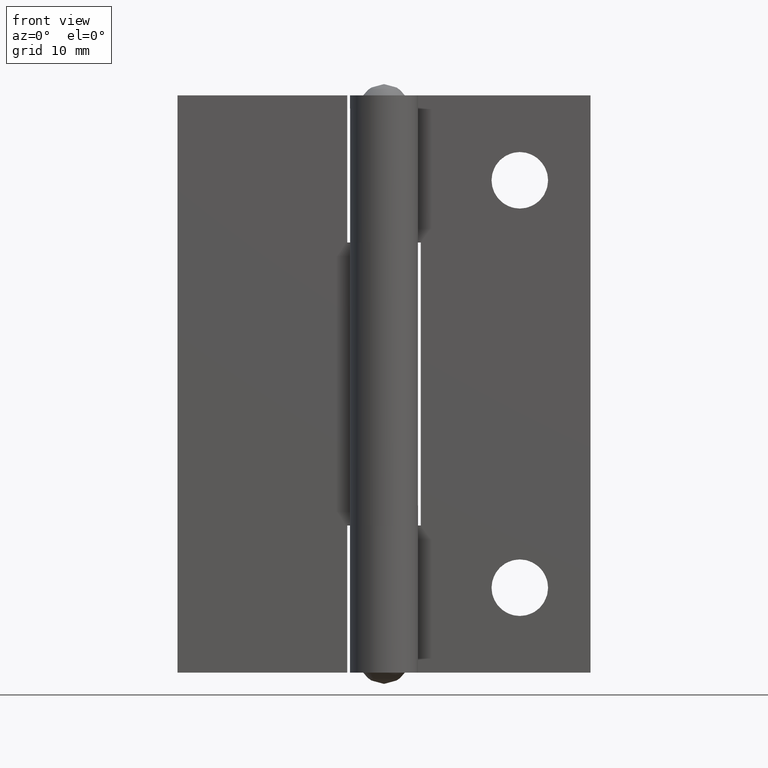
[diagram: clean part render]
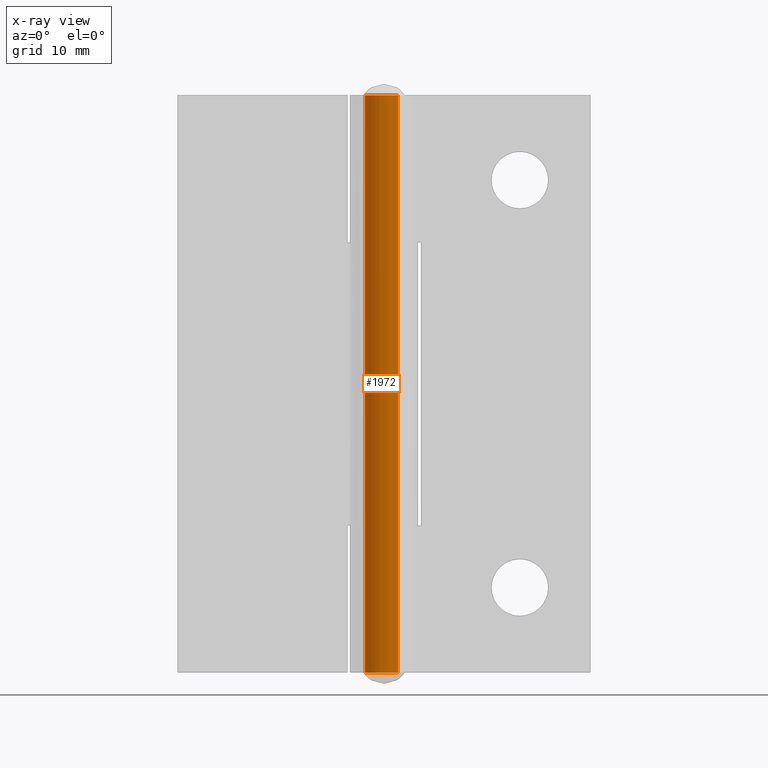
[diagram: x-ray — body ghosted, one internal face saturated and labeled with its STEP entity id]
A machine part, front view, then the same camera in x-ray: the body is ghosted and one INTERNAL B-rep face — a face not visible from any outside direction — is saturated and labeled: STEP entity #1972.
In plain terms, the highlighted face is a freeform B-spline surface patch.
Its self-contained STEP definition (entity closure, byte-faithful):
#1780=CARTESIAN_POINT('',(1.233134173481263,-1.170200548850547,1.350031E-013));
#1781=VERTEX_POINT('',#1780);
#1791=CARTESIAN_POINT('',(-0.000000689972525,-1.699996999999955,0.0));
#1792=VERTEX_POINT('',#1791);
#1793=CARTESIAN_POINT('',(1.233134173481263,-1.170200548850547,1.350031E-013));
#1794=CARTESIAN_POINT('',(1.084873335858418,-1.326750191509470,1.187716E-013));
#1795=CARTESIAN_POINT('',(0.805098800292903,-1.526620563497695,8.814198E-014));
#1796=CARTESIAN_POINT('',(0.366465206437808,-1.673544487398810,4.012055E-014));
#1797=CARTESIAN_POINT('',(0.122160353036018,-1.700017559327757,1.337415E-014));
#1798=CARTESIAN_POINT('',(-0.000000689972525,-1.699996999999955,0.0));
#1799=B_SPLINE_CURVE_WITH_KNOTS('',3,(#1793,#1794,#1795,#1796,#1797,#1798),.UNSPECIFIED.,.F.,.U.,(4,1,1,4),(0.000000020279414,0.646732455727033,1.013209900588565,1.379690266343256),.UNSPECIFIED.);
#1800=EDGE_CURVE('',#1781,#1792,#1799,.T.);
#1802=CARTESIAN_POINT('',(-1.699997000000095,0.0,0.0));
#1803=VERTEX_POINT('',#1802);
#1804=CARTESIAN_POINT('',(-0.000000689972525,-1.699996999999955,0.0));
#1805=CARTESIAN_POINT('',(-0.139082122622859,-1.700030679765997,0.0));
#1806=CARTESIAN_POINT('',(-0.424181915072825,-1.664814020897438,0.0));
#1807=CARTESIAN_POINT('',(-0.854967812153339,-1.495688882964191,0.0));
#1808=CARTESIAN_POINT('',(-1.200509624507363,-1.229408299326135,0.0));
#1809=CARTESIAN_POINT('',(-1.441192492525154,-0.920859683371721,0.0));
#1810=CARTESIAN_POINT('',(-1.638292069774597,-0.535331319593131,0.0));
#1811=CARTESIAN_POINT('',(-1.700224971687306,-0.215616446487607,0.0));
#1812=CARTESIAN_POINT('',(-1.699997000000095,0.0,0.0));
#1813=B_SPLINE_CURVE_WITH_KNOTS('',3,(#1804,#1805,#1806,#1807,#1808,#1809,#1810,#1811,#1812),.UNSPECIFIED.,.F.,.U.,(4,1,1,1,1,1,4),(0.000000072304251,0.417239638527129,0.855352148136184,1.376902719167356,1.710693232725921,2.023636363124933,2.670365409595183),.UNSPECIFIED.);
#1814=EDGE_CURVE('',#1792,#1803,#1813,.T.);
#1816=CARTESIAN_POINT('',(-1.233134173481264,1.170200548850548,1.350031E-013));
#1817=VERTEX_POINT('',#1816);
#1818=CARTESIAN_POINT('',(-1.699997000000095,0.0,0.0));
#1819=CARTESIAN_POINT('',(-1.700168209264929,0.201696211058522,2.326919E-014));
#1820=CARTESIAN_POINT('',(-1.644294189771776,0.510793058026451,5.892892E-014));
#1821=CARTESIAN_POINT('',(-1.455965316493578,0.899776393832268,1.038050E-013));
#1822=CARTESIAN_POINT('',(-1.316441024765869,1.082442479828514,1.248787E-013));
#1823=CARTESIAN_POINT('',(-1.233134173481264,1.170200548850548,1.350031E-013));
#1824=B_SPLINE_CURVE_WITH_KNOTS('',3,(#1818,#1819,#1820,#1821,#1822,#1823),.UNSPECIFIED.,.F.,.U.,(4,1,1,4),(8.560834E-009,0.605015280340660,0.927689776902787,1.290698840111791),.UNSPECIFIED.);
#1825=EDGE_CURVE('',#1803,#1817,#1824,.T.);
#1858=CARTESIAN_POINT('',(-1.233134172947246,1.170200549413286,50.999991999999999));
#1859=VERTEX_POINT('',#1858);
#1860=CARTESIAN_POINT('',(-1.233134172947246,1.170200549413286,50.999991999999999));
#1861=CARTESIAN_POINT('',(-1.233134173481264,1.170200548850548,1.350031E-013));
#1862=QUASI_UNIFORM_CURVE('',1,(#1860,#1861),.UNSPECIFIED.,.F.,.U.);
#1863=EDGE_CURVE('',#1859,#1817,#1862,.T.);
#1891=CARTESIAN_POINT('',(1.233134172947244,-1.170200549413285,50.999991999999999));
#1892=VERTEX_POINT('',#1891);
#1902=CARTESIAN_POINT('',(1.233134172947244,-1.170200549413285,50.999991999999999));
#1903=CARTESIAN_POINT('',(1.233134173481263,-1.170200548850547,1.350031E-013));
#1904=QUASI_UNIFORM_CURVE('',1,(#1902,#1903),.UNSPECIFIED.,.F.,.U.);
#1905=EDGE_CURVE('',#1892,#1781,#1904,.T.);
#1912=CARTESIAN_POINT('',(1.233134254597844,-1.170200713615720,52.274991800000002));
#1913=CARTESIAN_POINT('',(0.062933540982125,-2.403334968213564,52.274991799999995));
#1914=CARTESIAN_POINT('',(-1.170200713615720,-1.233134254597844,52.274991800000002));
#1915=CARTESIAN_POINT('',(-2.403334968213564,-0.062933540982125,52.274991799999995));
#1916=CARTESIAN_POINT('',(-1.233134254597844,1.170200713615720,52.274991800000002));
#1917=CARTESIAN_POINT('',(1.233134254597844,-1.170200713615720,-1.306874794999999));
#1918=CARTESIAN_POINT('',(0.062933540982125,-2.403334968213564,-1.306874794999999));
#1919=CARTESIAN_POINT('',(-1.170200713615720,-1.233134254597844,-1.306874794999999));
#1920=CARTESIAN_POINT('',(-2.403334968213564,-0.062933540982125,-1.306874794999999));
#1921=CARTESIAN_POINT('',(-1.233134254597844,1.170200713615720,-1.306874794999999));
#1929=(BOUNDED_SURFACE()B_SPLINE_SURFACE(2,1,((#1912,#1917),(#1913,#1918),(#1914,#1919),(#1915,#1920),(#1916,#1921)),.UNSPECIFIED.,.F.,.F.,.U.)B_SPLINE_SURFACE_WITH_KNOTS((3,2,3),(2,2),(0.0,1.570796326794897,3.141592653589793),(0.0,53.581866595000001),.UNSPECIFIED.)GEOMETRIC_REPRESENTATION_ITEM()RATIONAL_B_SPLINE_SURFACE(((1.0,1.0),(0.707106781186548,0.707106781186548),(1.0,1.0),(0.707106781186548,0.707106781186548),(1.0,1.0)))REPRESENTATION_ITEM('')SURFACE());
#1930=ORIENTED_EDGE('',*,*,#1825,.F.);
#1931=ORIENTED_EDGE('',*,*,#1814,.F.);
#1932=ORIENTED_EDGE('',*,*,#1800,.F.);
#1933=ORIENTED_EDGE('',*,*,#1905,.F.);
#1934=CARTESIAN_POINT('',(-0.000000689972525,-1.699996999999955,50.999991999999999));
#1935=VERTEX_POINT('',#1934);
#1936=CARTESIAN_POINT('',(1.233134172947244,-1.170200549413285,50.999991999999999));
#1937=CARTESIAN_POINT('',(1.124346186377043,-1.284916217419225,50.999991999999843));
#1938=CARTESIAN_POINT('',(0.931248664861039,-1.438431243531785,50.999992000000141));
#1939=CARTESIAN_POINT('',(0.517250660931182,-1.641808925475272,50.999991999999892));
#1940=CARTESIAN_POINT('',(0.215615739949616,-1.700201331210369,50.999991999999992));
#1941=CARTESIAN_POINT('',(-0.000000689972525,-1.699996999999955,50.999991999999999));
#1942=B_SPLINE_CURVE_WITH_KNOTS('',3,(#1936,#1937,#1938,#1939,#1940,#1941),.UNSPECIFIED.,.F.,.U.,(4,1,1,4),(0.000000020279464,0.474272448935686,0.732957830458075,1.379690265567449),.UNSPECIFIED.);
#1943=EDGE_CURVE('',#1892,#1935,#1942,.T.);
#1944=ORIENTED_EDGE('',*,*,#1943,.T.);
#1945=CARTESIAN_POINT('',(-1.699997000000095,0.0,50.999991999999999));
#1946=VERTEX_POINT('',#1945);
#1947=CARTESIAN_POINT('',(-0.000000689972525,-1.699996999999955,50.999991999999999));
#1948=CARTESIAN_POINT('',(-0.111263890854055,-1.700007623505803,50.999992000000091));
#1949=CARTESIAN_POINT('',(-0.340745876073487,-1.677397506755749,50.999991999999992));
#1950=CARTESIAN_POINT('',(-0.647947578379357,-1.582144814705312,50.999991999999992));
#1951=CARTESIAN_POINT('',(-0.931887113513935,-1.432604093895362,50.999991999999942));
#1952=CARTESIAN_POINT('',(-1.179776423595579,-1.239156493556478,50.999992000000347));
#1953=CARTESIAN_POINT('',(-1.412548440997184,-0.969316213335873,50.999991999999700));
#1954=CARTESIAN_POINT('',(-1.632920696242700,-0.563144096054388,50.999992000000283));
#1955=CARTESIAN_POINT('',(-1.700219773014907,-0.215612520646067,50.999991999999757));
#1956=CARTESIAN_POINT('',(-1.699997000000095,0.0,50.999991999999999));
#1957=B_SPLINE_CURVE_WITH_KNOTS('',3,(#1947,#1948,#1949,#1950,#1951,#1952,#1953,#1954,#1955,#1956),.UNSPECIFIED.,.F.,.U.,(4,1,1,1,1,1,1,4),(0.000000072304251,0.333791161351447,0.688454078737601,0.959672986576761,1.293463365153760,1.627242708655789,2.023636363124933,2.670365409595183),.UNSPECIFIED.);
#1958=EDGE_CURVE('',#1935,#1946,#1957,.T.);
#1959=ORIENTED_EDGE('',*,*,#1958,.T.);
#1960=CARTESIAN_POINT('',(-1.699997000000095,0.0,50.999991999999999));
#1961=CARTESIAN_POINT('',(-1.700170176826580,0.201697810313675,50.999991999999992));
#1962=CARTESIAN_POINT('',(-1.649148051250208,0.483909179728663,50.999991999999978));
#1963=CARTESIAN_POINT('',(-1.470459702505236,0.876481966276442,50.999992000000063));
#1964=CARTESIAN_POINT('',(-1.334976521662189,1.062956575007281,50.999991999999892));
#1965=CARTESIAN_POINT('',(-1.233134172947246,1.170200549413286,50.999991999999999));
#1966=B_SPLINE_CURVE_WITH_KNOTS('',3,(#1960,#1961,#1962,#1963,#1964,#1965),.UNSPECIFIED.,.F.,.U.,(4,1,1,4),(8.560802E-009,0.605015280704329,0.847020985607558,1.290698840887635),.UNSPECIFIED.);
#1967=EDGE_CURVE('',#1946,#1859,#1966,.T.);
#1968=ORIENTED_EDGE('',*,*,#1967,.T.);
#1969=ORIENTED_EDGE('',*,*,#1863,.T.);
#1970=EDGE_LOOP('',(#1930,#1931,#1932,#1933,#1944,#1959,#1968,#1969));
#1971=FACE_OUTER_BOUND('',#1970,.T.);
#1972=ADVANCED_FACE('',(#1971),#1929,.T.);